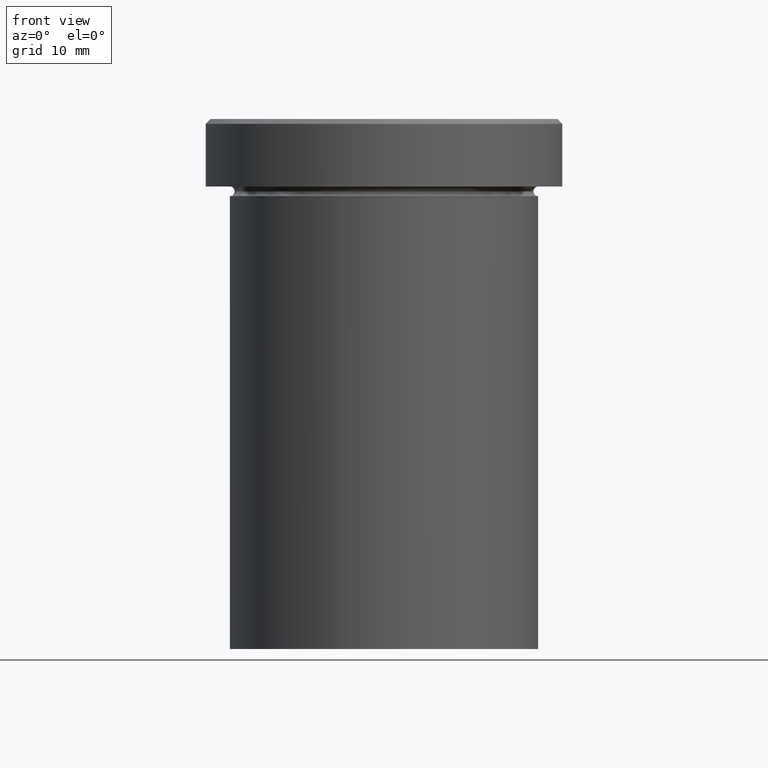
[diagram: clean part render]
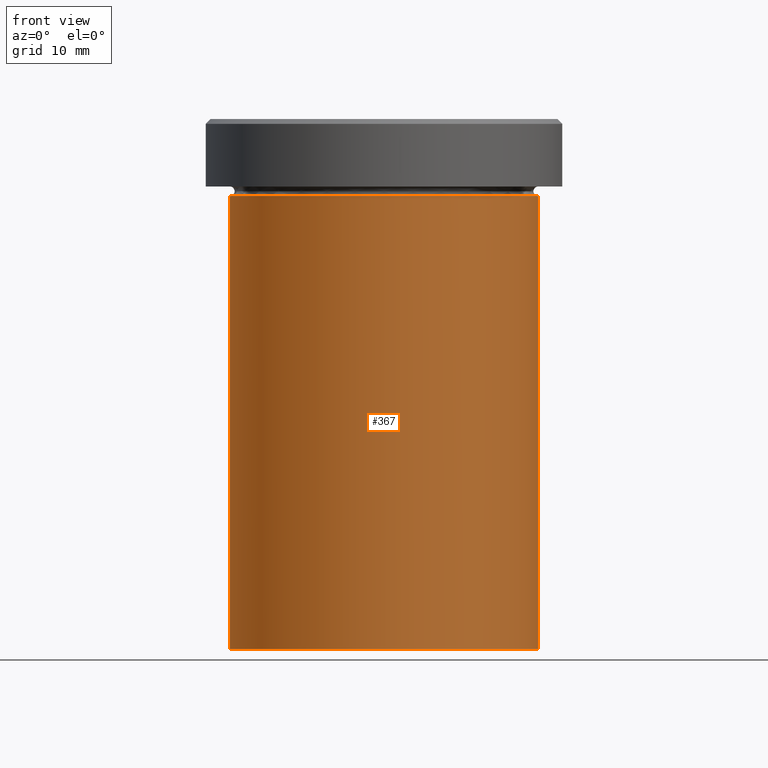
[diagram: same view with one face highlighted and labeled with its STEP entity id]
A machine part, front view. The second image highlights one B-rep face of the part: STEP entity #367.
In plain terms, the highlighted cylindrical surface (partial cylindrical patch) has radius 16 mm, axis along (-0, -0, 1).
Its self-contained STEP definition (entity closure, byte-faithful):
#3 = CARTESIAN_POINT ( 'NONE',  ( 16.00000000000000000, 0.000000000000000000, -8.000000000000000000 ) ) ;
#4 = CARTESIAN_POINT ( 'NONE',  ( -16.00000000000000000, 1.959434878635765131E-15, -8.000000000000000000 ) ) ;
#35 = CARTESIAN_POINT ( 'NONE',  ( 0.000000000000000000, 0.000000000000000000, -8.000000000000000000 ) ) ;
#37 = EDGE_CURVE ( 'NONE', #153, #133, #399, .T. ) ;
#46 = VERTEX_POINT ( 'NONE', #357 ) ;
#50 = VECTOR ( 'NONE', #223, 1000.000000000000000 ) ;
#64 = CARTESIAN_POINT ( 'NONE',  ( 0.000000000000000000, 0.000000000000000000, -54.99999999999999289 ) ) ;
#66 = EDGE_CURVE ( 'NONE', #155, #153, #286, .T. ) ;
#71 = ORIENTED_EDGE ( 'NONE', *, *, #66, .F. ) ;
#78 = EDGE_LOOP ( 'NONE', ( #71, #94, #149, #294 ) ) ;
#89 = EDGE_CURVE ( 'NONE', #155, #46, #317, .T. ) ;
#94 = ORIENTED_EDGE ( 'NONE', *, *, #89, .T. ) ;
#98 = DIRECTION ( 'NONE',  ( -0.000000000000000000, -0.000000000000000000, 1.000000000000000000 ) ) ;
#116 = CYLINDRICAL_SURFACE ( 'NONE', #289, 16.00000000000000000 ) ;
#123 = DIRECTION ( 'NONE',  ( -0.000000000000000000, -0.000000000000000000, 1.000000000000000000 ) ) ;
#126 = DIRECTION ( 'NONE',  ( 1.000000000000000000, 0.000000000000000000, 0.000000000000000000 ) ) ;
#133 = VERTEX_POINT ( 'NONE', #3 ) ;
#141 = AXIS2_PLACEMENT_3D ( 'NONE', #64, #123, #126 ) ;
#145 = FACE_OUTER_BOUND ( 'NONE', #78, .T. ) ;
#146 = DIRECTION ( 'NONE',  ( -0.000000000000000000, -0.000000000000000000, 1.000000000000000000 ) ) ;
#149 = ORIENTED_EDGE ( 'NONE', *, *, #332, .T. ) ;
#153 = VERTEX_POINT ( 'NONE', #4 ) ;
#155 = VERTEX_POINT ( 'NONE', #251 ) ;
#196 = AXIS2_PLACEMENT_3D ( 'NONE', #35, #98, #282 ) ;
#202 = LINE ( 'NONE', #389, #372 ) ;
#223 = DIRECTION ( 'NONE',  ( -0.000000000000000000, -0.000000000000000000, 1.000000000000000000 ) ) ;
#238 = DIRECTION ( 'NONE',  ( 1.000000000000000000, 0.000000000000000000, 0.000000000000000000 ) ) ;
#251 = CARTESIAN_POINT ( 'NONE',  ( -16.00000000000000000, 1.959434878635765131E-15, -54.99999999999999289 ) ) ;
#282 = DIRECTION ( 'NONE',  ( 1.000000000000000000, 0.000000000000000000, 0.000000000000000000 ) ) ;
#286 = LINE ( 'NONE', #350, #50 ) ;
#289 = AXIS2_PLACEMENT_3D ( 'NONE', #404, #146, #238 ) ;
#290 = DIRECTION ( 'NONE',  ( -0.000000000000000000, -0.000000000000000000, 1.000000000000000000 ) ) ;
#294 = ORIENTED_EDGE ( 'NONE', *, *, #37, .F. ) ;
#317 = CIRCLE ( 'NONE', #141, 16.00000000000000000 ) ;
#332 = EDGE_CURVE ( 'NONE', #46, #133, #202, .T. ) ;
#350 = CARTESIAN_POINT ( 'NONE',  ( -16.00000000000000000, 1.959434878635765131E-15, 0.000000000000000000 ) ) ;
#357 = CARTESIAN_POINT ( 'NONE',  ( 16.00000000000000000, 0.000000000000000000, -54.99999999999999289 ) ) ;
#367 = ADVANCED_FACE ( 'NONE', ( #145 ), #116, .T. ) ;
#372 = VECTOR ( 'NONE', #290, 1000.000000000000000 ) ;
#389 = CARTESIAN_POINT ( 'NONE',  ( 16.00000000000000000, 0.000000000000000000, 0.000000000000000000 ) ) ;
#399 = CIRCLE ( 'NONE', #196, 16.00000000000000000 ) ;
#404 = CARTESIAN_POINT ( 'NONE',  ( 0.000000000000000000, 0.000000000000000000, 0.000000000000000000 ) ) ;